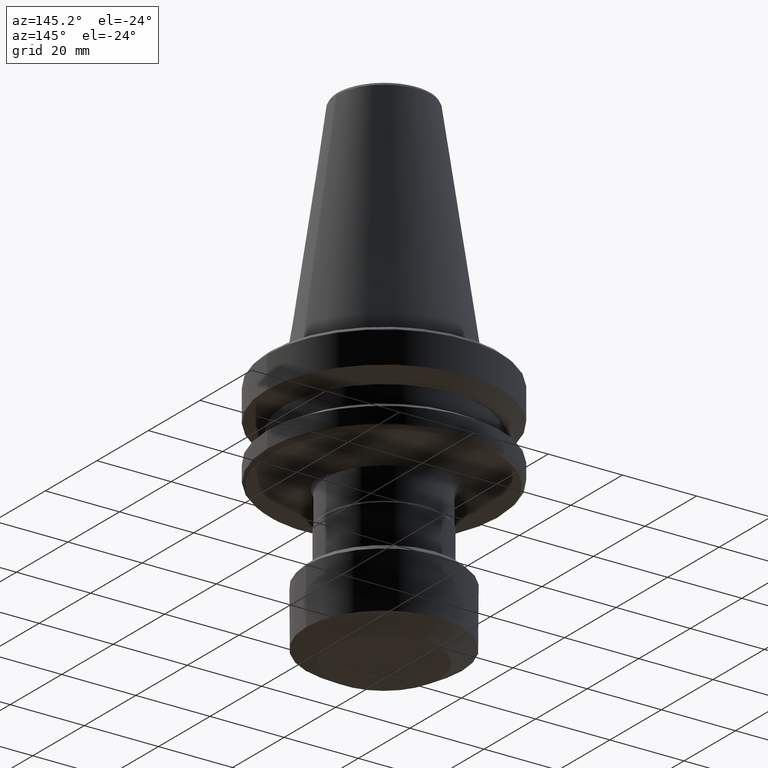
[diagram: clean part render]
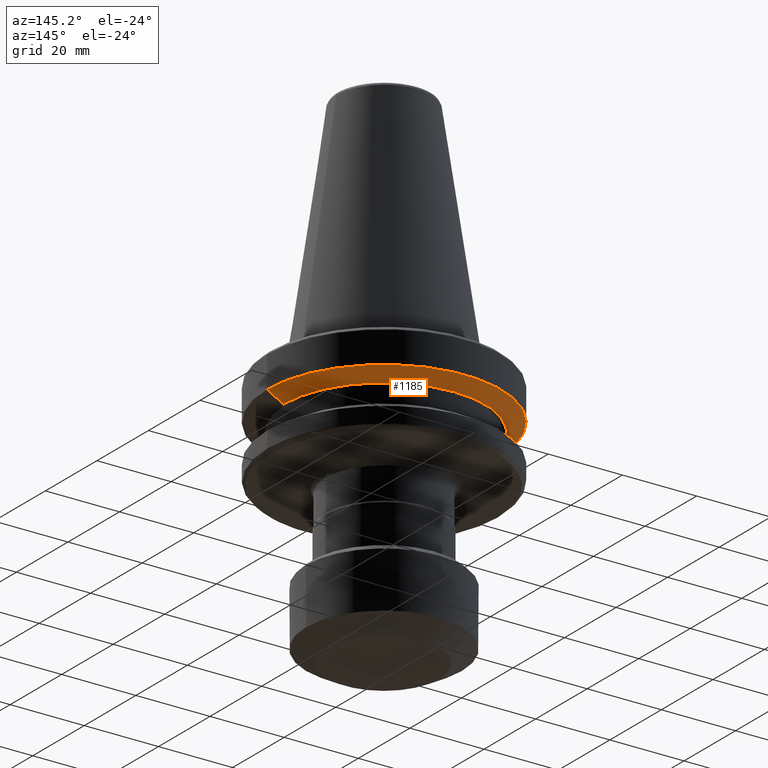
[diagram: same view with one face highlighted and labeled with its STEP entity id]
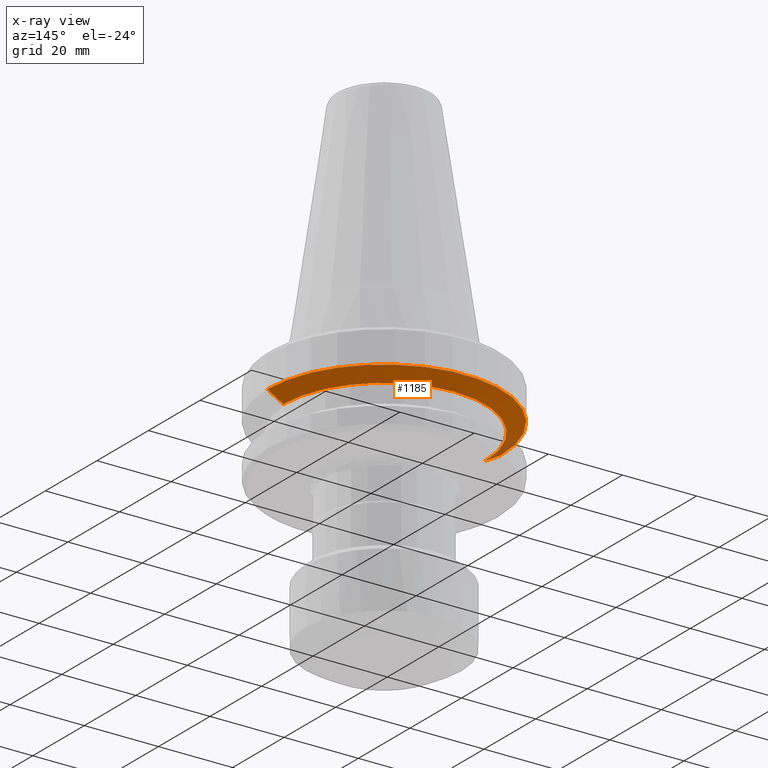
[diagram: x-ray of the same camera — body ghosted, the highlighted face saturated]
A machine part, auxiliary view. The second image highlights one B-rep face of the part: STEP entity #1185.
The next image is the same camera in x-ray: the body ghosted, the highlighted face saturated — about 4% of this face is hidden behind the body in this view.
In plain terms, the highlighted conical surface has half-angle 60 deg.
Its self-contained STEP definition (entity closure, byte-faithful):
#177 = CIRCLE ( 'NONE', #213, 27.17686492459586800 ) ;
#213 = AXIS2_PLACEMENT_3D ( 'NONE', #2099, #883, #2289 ) ;
#221 = EDGE_CURVE ( 'NONE', #2614, #1213, #705, .T. ) ;
#233 = CARTESIAN_POINT ( 'NONE',  ( 61.73341380625030400, 81.23534176582239800, 55.46390148157179600 ) ) ;
#282 = VECTOR ( 'NONE', #1253, 1000.000000000000000 ) ;
#298 = LINE ( 'NONE', #1436, #282 ) ;
#478 = CONICAL_SURFACE ( 'NONE', #2394, 31.50000000000000000, 1.047197551196597600 ) ;
#516 = FACE_OUTER_BOUND ( 'NONE', #1573, .T. ) ;
#561 = VECTOR ( 'NONE', #1790, 1000.000000000000000 ) ;
#564 = LINE ( 'NONE', #1329, #561 ) ;
#705 = CIRCLE ( 'NONE', #2487, 31.50000000000000000 ) ;
#882 = EDGE_CURVE ( 'NONE', #1249, #1213, #564, .T. ) ;
#883 = DIRECTION ( 'NONE',  ( -0.0000000000000000000, -0.0000000000000000000, 1.000000000000000000 ) ) ;
#972 = ORIENTED_EDGE ( 'NONE', *, *, #221, .F. ) ;
#991 = CARTESIAN_POINT ( 'NONE',  ( 88.91027873084617300, 81.23534176582239800, 52.96793828204410200 ) ) ;
#1055 = VERTEX_POINT ( 'NONE', #991 ) ;
#1140 = ORIENTED_EDGE ( 'NONE', *, *, #882, .T. ) ;
#1185 = ADVANCED_FACE ( 'NONE', ( #516 ), #478, .T. ) ;
#1197 = CARTESIAN_POINT ( 'NONE',  ( 30.23341380625030400, 81.23534176582239800, 55.46390148157179600 ) ) ;
#1213 = VERTEX_POINT ( 'NONE', #1197 ) ;
#1248 = CARTESIAN_POINT ( 'NONE',  ( 34.55654888165443600, 81.23534176582239800, 52.96793828204410200 ) ) ;
#1249 = VERTEX_POINT ( 'NONE', #1248 ) ;
#1253 = DIRECTION ( 'NONE',  ( 0.8660254037844386000, 0.0000000000000000000, 0.5000000000000001100 ) ) ;
#1285 = DIRECTION ( 'NONE',  ( -0.0000000000000000000, -0.0000000000000000000, 1.000000000000000000 ) ) ;
#1326 = DIRECTION ( 'NONE',  ( 1.000000000000000000, 0.0000000000000000000, 0.0000000000000000000 ) ) ;
#1329 = CARTESIAN_POINT ( 'NONE',  ( 30.23341380625030400, 81.23534176582239800, 55.46390148157179600 ) ) ;
#1394 = CARTESIAN_POINT ( 'NONE',  ( 61.73341380625030400, 81.23534176582239800, 55.46390148157179600 ) ) ;
#1436 = CARTESIAN_POINT ( 'NONE',  ( 93.23341380625029700, 81.23534176582239800, 55.46390148157179600 ) ) ;
#1565 = CARTESIAN_POINT ( 'NONE',  ( 93.23341380625029700, 81.23534176582239800, 55.46390148157179600 ) ) ;
#1573 = EDGE_LOOP ( 'NONE', ( #2382, #1140, #972, #2032 ) ) ;
#1790 = DIRECTION ( 'NONE',  ( -0.8660254037844386000, 1.060575238724906800E-016, 0.5000000000000001100 ) ) ;
#1867 = DIRECTION ( 'NONE',  ( -0.0000000000000000000, -0.0000000000000000000, 1.000000000000000000 ) ) ;
#1879 = DIRECTION ( 'NONE',  ( 1.000000000000000000, 0.0000000000000000000, 0.0000000000000000000 ) ) ;
#1906 = EDGE_CURVE ( 'NONE', #1055, #2614, #298, .T. ) ;
#2032 = ORIENTED_EDGE ( 'NONE', *, *, #1906, .F. ) ;
#2099 = CARTESIAN_POINT ( 'NONE',  ( 61.73341380625030400, 81.23534176582239800, 52.96793828204410200 ) ) ;
#2189 = EDGE_CURVE ( 'NONE', #1055, #1249, #177, .T. ) ;
#2289 = DIRECTION ( 'NONE',  ( 1.000000000000000000, 0.0000000000000000000, 0.0000000000000000000 ) ) ;
#2382 = ORIENTED_EDGE ( 'NONE', *, *, #2189, .T. ) ;
#2394 = AXIS2_PLACEMENT_3D ( 'NONE', #1394, #1285, #1326 ) ;
#2487 = AXIS2_PLACEMENT_3D ( 'NONE', #233, #1867, #1879 ) ;
#2614 = VERTEX_POINT ( 'NONE', #1565 ) ;